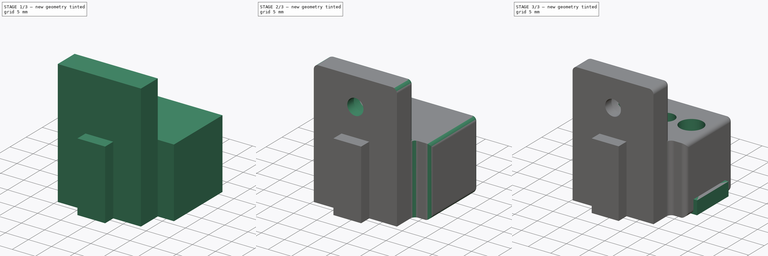
[diagram: build sequence overview — one tinted view per stage of 3, left to right]
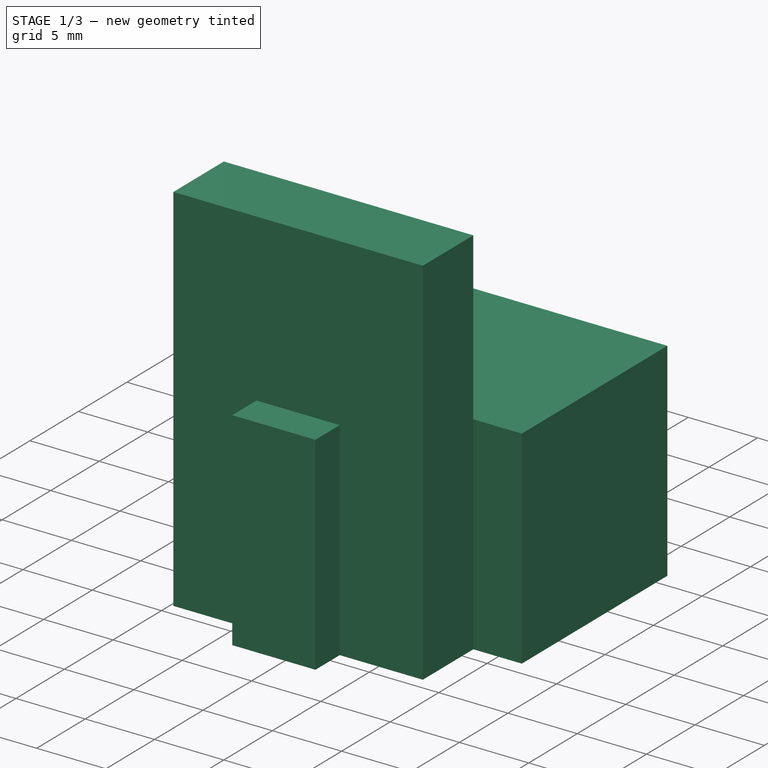
[diagram: stage 1 of 3 — iso view after this stage's code; geometry added in this stage tinted green]
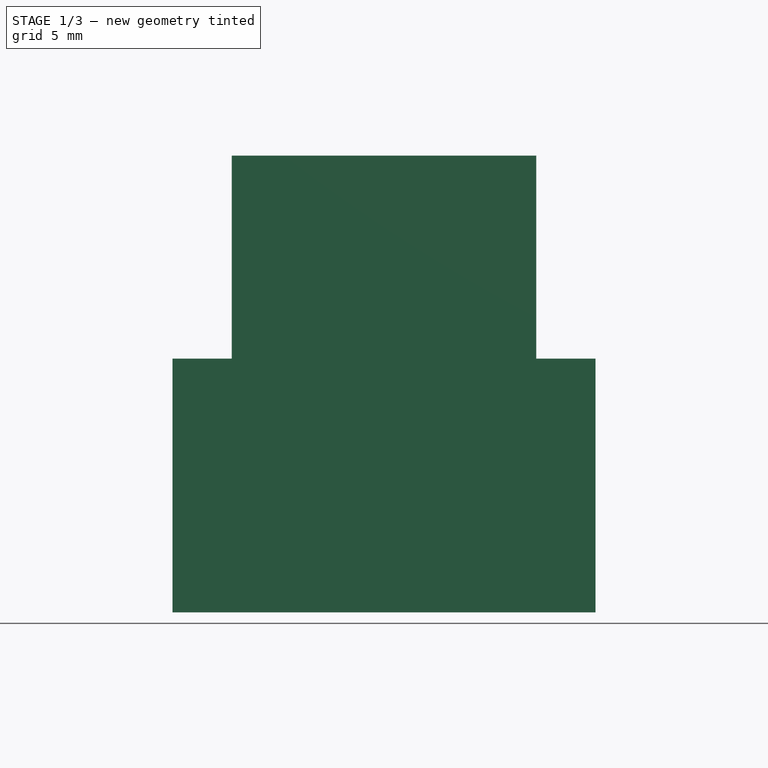
[diagram: stage 1 of 3 — front view after this stage's code; geometry added in this stage tinted green]
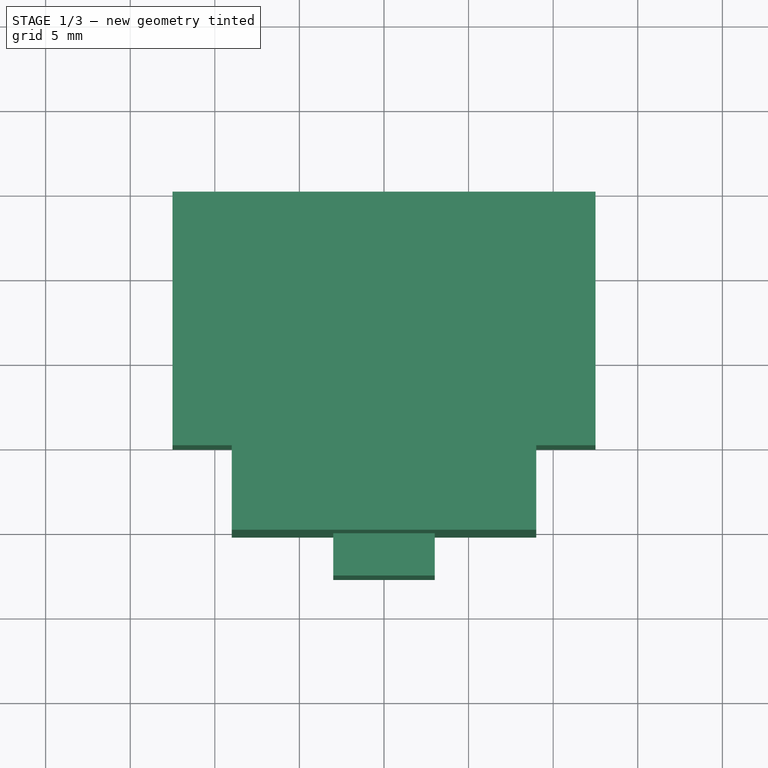
[diagram: stage 1 of 3 — top view after this stage's code; geometry added in this stage tinted green]
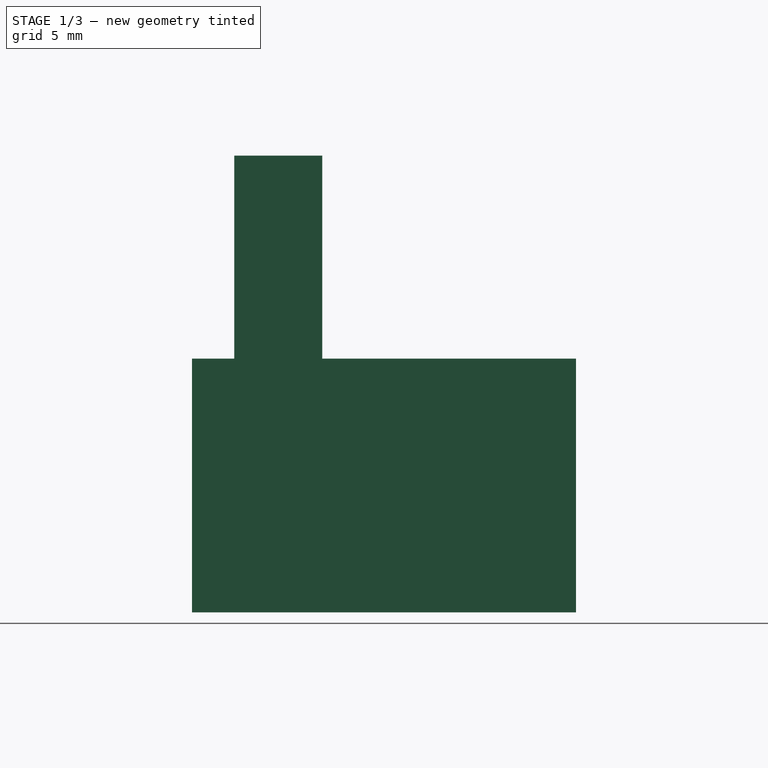
[diagram: stage 1 of 3 — right view after this stage's code; geometry added in this stage tinted green]
FCSTD DOCUMENT  (FreeCAD 0.17R13522 (Git))
Label: AllenStore
License: All rights reserved
LicenseURL: http://en.wikipedia.org/wiki/All_rights_reserved
objects: Sketcher::SketchObject×6, PartDesign::Pad×3, PartDesign::Pocket×3, PartDesign::Body×2, App::Part×2, Spreadsheet::Sheet×1, PartDesign::Fillet×1
note: 21 computed .brp shape members not serialized (recipe doc carries the construction recipe); baked Part::Feature solids carry a one-line shape summary decoded from their .brp

FEATURE [Sketcher::SketchObject] Sketch001
  MapMode = 5
  Support = -> [XY_Plane003]
  expr: Constraints[5] = Spreadsheet.BodyWidth
  expr: Constraints[31] = Spreadsheet.BodyLength
  expr: Constraints[25] = Spreadsheet.AttacherGrooveWidth
  expr: Constraints[29] = Spreadsheet.AttacherGrooveHeight
  expr: Constraints[26] = Spreadsheet.AttacherThickness
  expr: Constraints[8] = Spreadsheet.AttacherWidth
  sketch-geometry (12):
    g0: LineSegment StartX=-12.5 StartY=15 StartZ=0 EndX=12.5 EndY=15 EndZ=0
    g1: LineSegment StartX=12.5 StartY=15 StartZ=0 EndX=12.5 EndY=0 EndZ=0
    g2: LineSegment StartX=-12.5 StartY=0 StartZ=0 EndX=-12.5 EndY=15 EndZ=0
    g3: LineSegment StartX=-12.5 StartY=0 StartZ=0 EndX=-9 EndY=0 EndZ=0
    g4: LineSegment StartX=12.5 StartY=0 StartZ=0 EndX=9 EndY=0 EndZ=0
    g5: LineSegment StartX=-9 StartY=0 StartZ=0 EndX=-9 EndY=-5.2 EndZ=0
    g6: LineSegment StartX=-9 StartY=-5.2 StartZ=0 EndX=-3 EndY=-5.2 EndZ=0
    g7: LineSegment StartX=-3 StartY=-5.2 StartZ=0 EndX=-3 EndY=-7.7 EndZ=0
    g8: LineSegment StartX=-3 StartY=-7.7 StartZ=0 EndX=3 EndY=-7.7 EndZ=0
    g9: LineSegment StartX=3 StartY=-7.7 StartZ=0 EndX=3 EndY=-5.2 EndZ=0
    g10: LineSegment StartX=3 StartY=-5.2 StartZ=0 EndX=9 EndY=-5.2 EndZ=0
    g11: LineSegment StartX=9 StartY=-5.2 StartZ=0 EndX=9 EndY=0 EndZ=0
  constraints (35):
    c: Coincident(g0,g1)
    c: Coincident(g2,g0)
    c: Horizontal(g0)
    c: Vertical(g1)
    c: Vertical(g2)
    c: DistanceX(g0,g0) = 25
    c: Horizontal(g3)
    c: Equal(g3,g4)
    c: DistanceX(g3,g4) = 18
    c: Coincident(g3,g5)
    c: Vertical(g5)
    c: Coincident(g5,g6)
    c: Horizontal(g6)
    c: Coincident(g6,g7)
    c: Vertical(g7)
    c: Coincident(g7,g8)
    c: Horizontal(g8)
    c: Coincident(g8,g9)
    c: Vertical(g9)
    c: Coincident(g9,g10)
    c: Horizontal(g10)
    c: Coincident(g10,g11)
    c: Coincident(g11,g4)
    c: Vertical(g11)
    c: Equal(g10,g6)
    c: DistanceX(g8,g8) = 6
    c: DistanceY(g11,g11) = 5.2
    c: Horizontal(g4)
    c: Equal(g11,g5)
    c: DistanceY(g9,g9) = 2.5
    c: Symmetric(g2,g1,g-2)
    c: DistanceY(g4,g0) = 15
    c: PointOnObject(g4,g-1)
    c: Coincident(g2,g3)
    c: Coincident(g1,g4)
FEATURE [Spreadsheet::Sheet] Spreadsheet
  cells = B2=ScrewRadius; C2(ScrewRadius)=1.75; B3=ScrewHeadRadius; C3(ScrewHeadRadius)=3.1000000000000001; B4=ScrewHeadHeight; C4(ScrewHeadHeight)=3.2000000000000002; B5=BodyWidth; C5(BodyWidth)=25; B6=BodyLength; C6(BodyLength)=15; B7=BodyHeight; C7(BodyHeight)=15; B8=AttacherThickness; C8(AttacherThickness)==ScrewHeadHeight + 2; B9=AttacherWidth; C9(AttacherWidth)=18; B10=AttacherHeight; C10(AttacherHeight)=12; B11=AttacherGrooveWidth; C11(AttacherGrooveWidth)=6; B12=AttacherGrooveHeight; C12(AttacherGrooveHeight)=2.5; B13=AttacherHoleOffset; C13(AttacherHoleOffset)==BodyHeight + AttacherHeight / 2; B14=AllenDistance; C14(AllenDistance)=1.2
FEATURE [PartDesign::Pad] Pad001
  Length = 15
  Length2 = 100
  Profile = -> Sketch001
  Type = 0
  expr: Length = Spreadsheet.BodyHeight
FEATURE [Sketcher::SketchObject] Sketch004
  MapMode = 5
  Placement = pos=(0,0,0) rot=(1,0,0;1.5708rad)
  Support = -> [XZ_Plane003]
  expr: Constraints[2] = Spreadsheet.AttacherHoleOffset
  expr: Constraints[1] = Spreadsheet.ScrewRadius
  sketch-geometry (1):
    g0: Circle CenterX=0 CenterY=21 CenterZ=0 NormalX=0 NormalY=0 NormalZ=1 AngleXU=0 Radius=1.75
  constraints (3):
    c: PointOnObject(g0,g-2)
    c: Radius(g0) = 1.75
    c: DistanceY(g-1,g0) = 21
FEATURE [Sketcher::SketchObject] Sketch006
  AttachmentOffset = pos=(0,0,15) rot=(0,0,1;0rad)
  MapMode = 5
  Placement = pos=(0,0,15) rot=(0,0,1;0rad)
  Support = -> [XY_Plane003]
  expr: Constraints[0] = Spreadsheet.AttacherWidth
  expr: AttachmentOffset.Base.z = Spreadsheet.BodyHeight
  expr: Constraints[5] = Spreadsheet.AttacherThickness
  sketch-geometry (4):
    g0: LineSegment StartX=-9 StartY=0 StartZ=0 EndX=-9 EndY=-5.2 EndZ=0
    g1: LineSegment StartX=-9 StartY=-5.2 StartZ=0 EndX=9 EndY=-5.2 EndZ=0
    g2: LineSegment StartX=9 StartY=-5.2 StartZ=0 EndX=9 EndY=0 EndZ=0
    g3: LineSegment StartX=-9 StartY=0 StartZ=0 EndX=9 EndY=0 EndZ=0
  constraints (12):
    c: DistanceX(g0,g2) = 18
    c: Vertical(g0)
    c: Horizontal(g1)
    c: Coincident(g1,g2)
    c: Vertical(g2)
    c: DistanceY(g2,g2) = 5.2
    c: Equal(g2,g0)
    c: PointOnObject(g2,g-1)
    c: Coincident(g3,g0)
    c: Coincident(g3,g2)
    c: Symmetric(g0,g2,g-2)
    c: Coincident(g1,g0)
FEATURE [PartDesign::Pad] Pad002
  BaseFeature = -> Pad001
  Length = 12
  Length2 = 100
  Profile = -> Sketch006
  Type = 0
  expr: Length = Spreadsheet.AttacherHeight
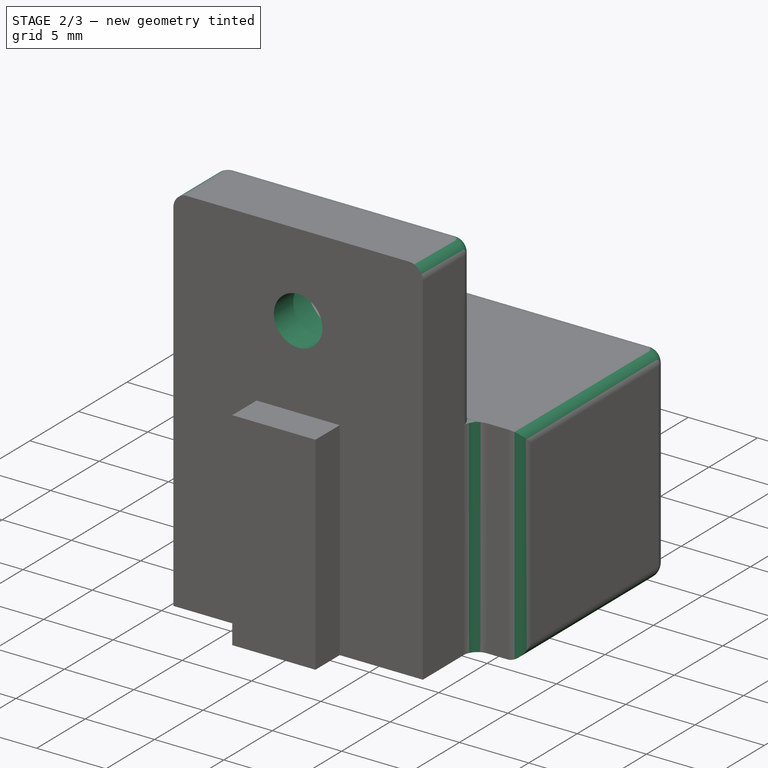
[diagram: stage 2 of 3 — iso view after this stage's code; geometry added in this stage tinted green]
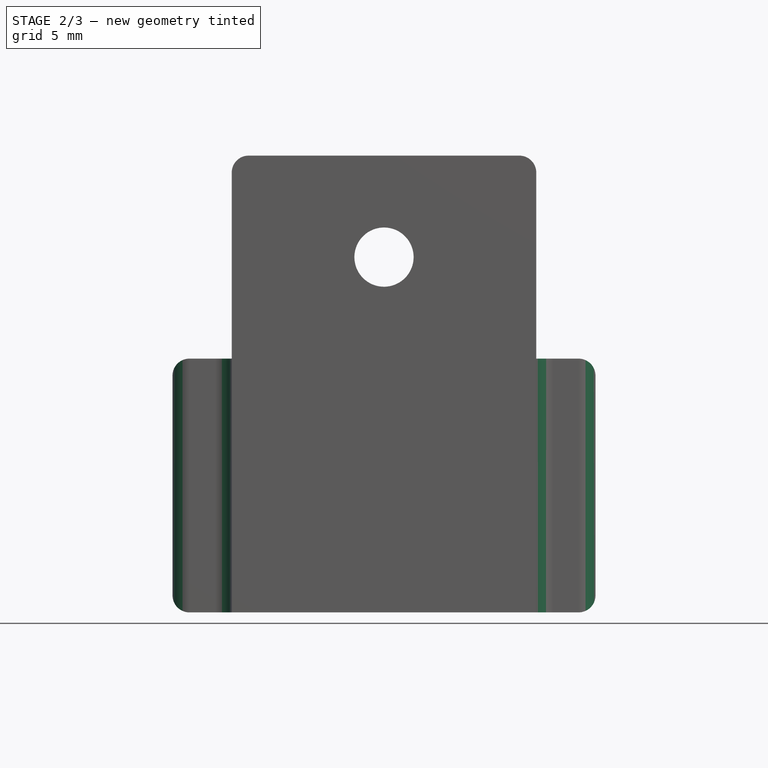
[diagram: stage 2 of 3 — front view after this stage's code; geometry added in this stage tinted green]
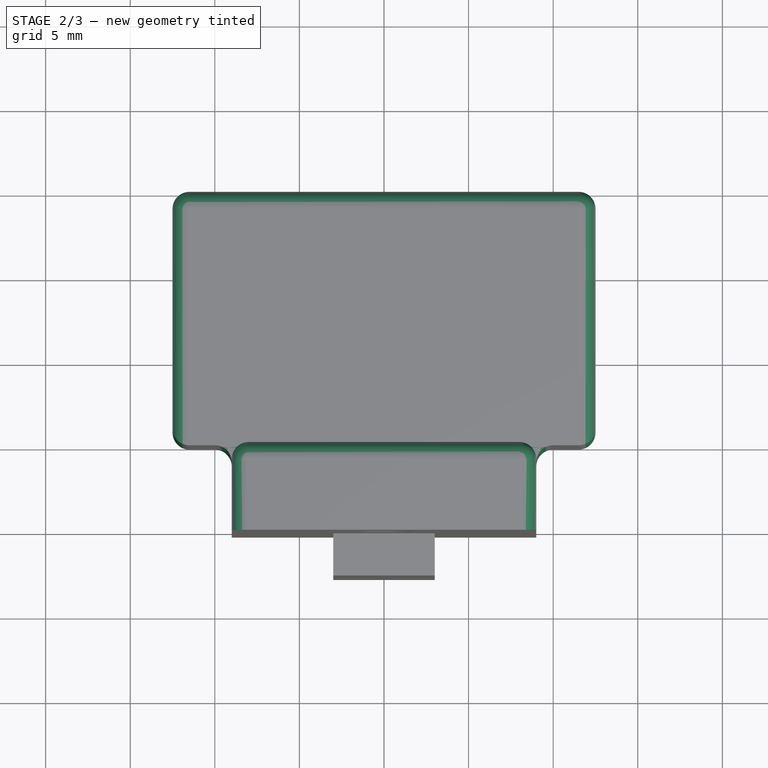
[diagram: stage 2 of 3 — top view after this stage's code; geometry added in this stage tinted green]
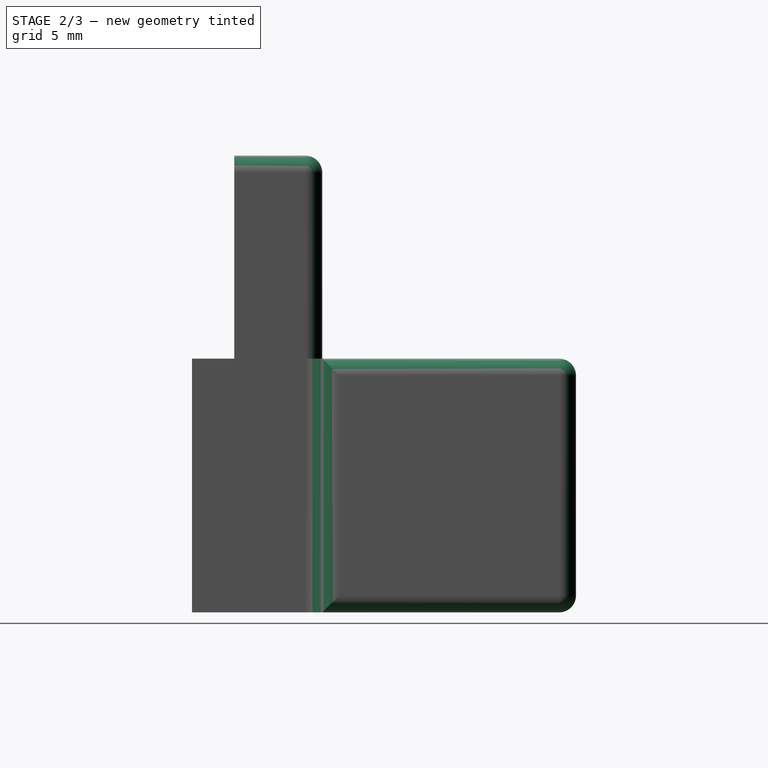
[diagram: stage 2 of 3 — right view after this stage's code; geometry added in this stage tinted green]
FEATURE [PartDesign::Pocket] Pocket
  BaseFeature = -> Pad002
  Length = 5
  Length2 = 100
  Profile = -> Sketch004
  Reversed = true
  Type = 2
FEATURE [Sketcher::SketchObject] Sketch007
  MapMode = 5
  Placement = pos=(0,0,0) rot=(1,0,0;1.5708rad)
  Support = -> [XZ_Plane003]
  expr: Constraints[2] = Spreadsheet.AttacherHoleOffset
  expr: Constraints[1] = Spreadsheet.ScrewHeadRadius
  sketch-geometry (1):
    g0: Circle CenterX=0 CenterY=21 CenterZ=0 NormalX=0 NormalY=0 NormalZ=1 AngleXU=0 Radius=3.1
  constraints (3):
    c: PointOnObject(g0,g-2)
    c: Radius(g0) = 3.1
    c: DistanceY(g-1,g0) = 21
FEATURE [PartDesign::Pocket] Pocket001
  BaseFeature = -> Pocket
  Length = 3.2
  Length2 = 100
  Profile = -> Sketch007
  Reversed = true
  Type = 0
  expr: Length = Spreadsheet.ScrewHeadHeight
FEATURE [PartDesign::Fillet] Fillet
  Base = -> Pocket001 [Edge1,Edge5,Edge23,Edge2,Edge8,Edge24,Edge40,Edge38,Edge4,Edge10,Edge7,Edge3,Edge6,Edge9,Edge39,Edge43,Edge48]
  BaseFeature = -> Pocket001
  Radius = 1
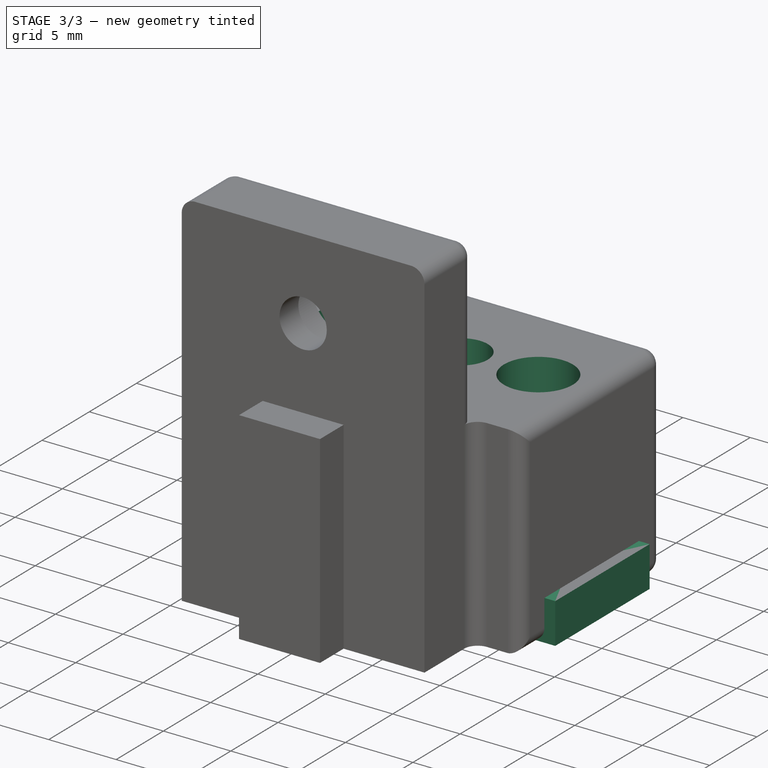
[diagram: stage 3 of 3 — iso view after this stage's code; geometry added in this stage tinted green]
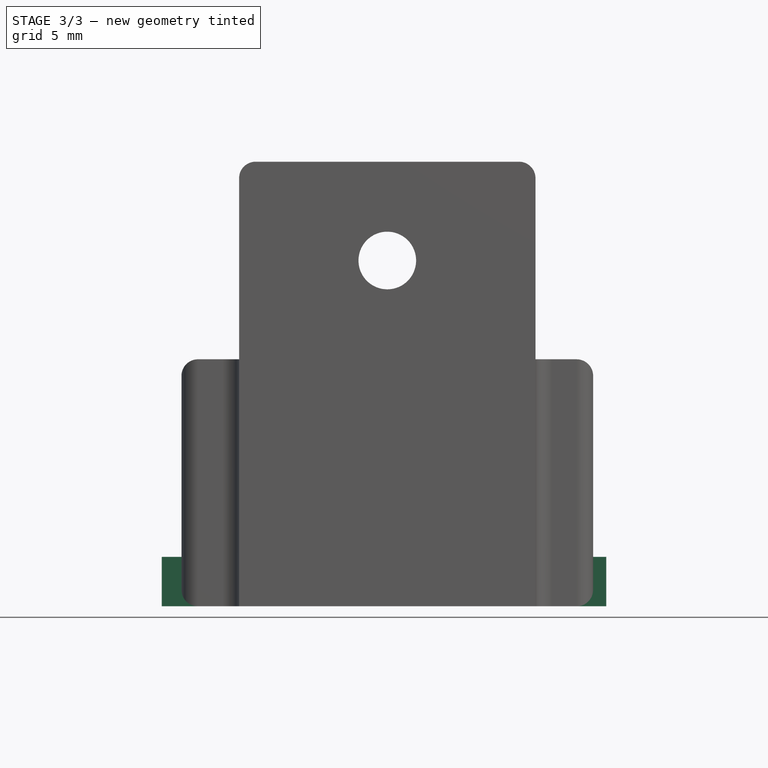
[diagram: stage 3 of 3 — front view after this stage's code; geometry added in this stage tinted green]
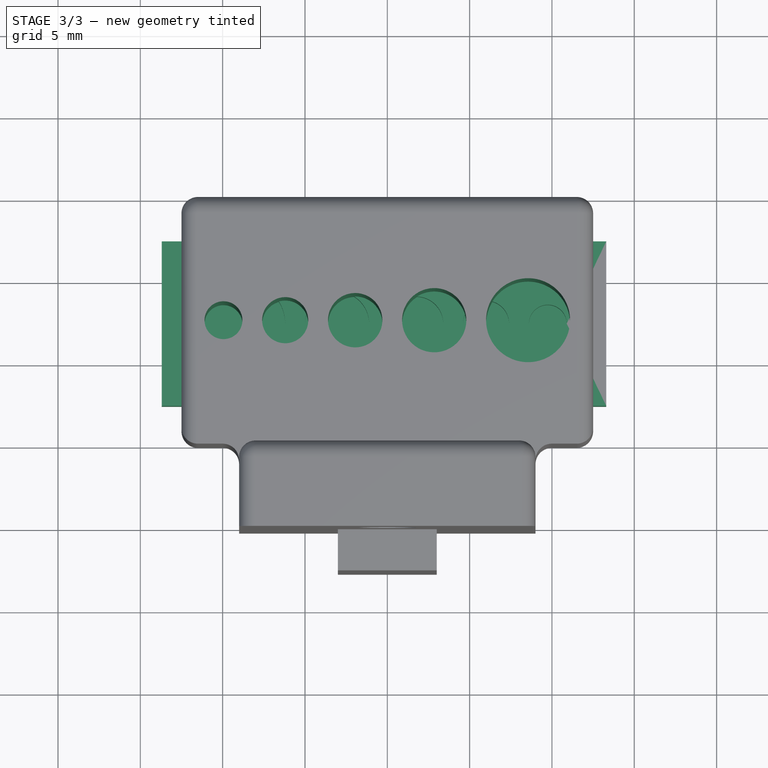
[diagram: stage 3 of 3 — top view after this stage's code; geometry added in this stage tinted green]
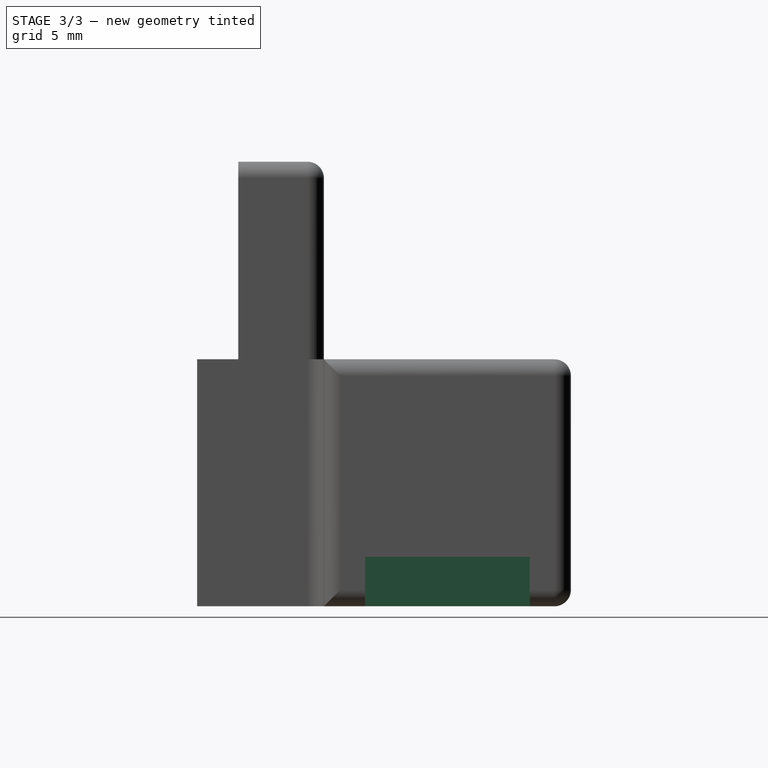
[diagram: stage 3 of 3 — right view after this stage's code; geometry added in this stage tinted green]
FEATURE [Sketcher::SketchObject] Sketch008
  MapMode = 5
  Placement = pos=(0,0,15) rot=(0,0,1;0rad)
  Support = -> [Fillet]
  expr: Constraints[39] = Spreadsheet.AllenDistance
  expr: Constraints[37] = Spreadsheet.AllenDistance
  expr: Constraints[36] = Spreadsheet.AllenDistance
  expr: Constraints[38] = Spreadsheet.AllenDistance
  expr: Constraints[3] = Spreadsheet.BodyWidth
  expr: Constraints[2] = Spreadsheet.BodyLength
  sketch-geometry (17):
    g0: LineSegment [constr] StartX=0 StartY=0 StartZ=0 EndX=0 EndY=15 EndZ=0
    g1: LineSegment [constr] StartX=-12.5 StartY=7.5 StartZ=0 EndX=12.5 EndY=7.5 EndZ=0
    g2: Circle CenterX=8.55 CenterY=7.5 CenterZ=0 NormalX=0 NormalY=0 NormalZ=1 AngleXU=0 Radius=2.55
    g3: Circle CenterX=2.85 CenterY=7.5 CenterZ=0 NormalX=0 NormalY=0 NormalZ=1 AngleXU=0 Radius=1.95
    g4: Circle CenterX=-1.95 CenterY=7.5 CenterZ=0 NormalX=0 NormalY=0 NormalZ=1 AngleXU=0 Radius=1.65
    g5: Circle CenterX=-6.2 CenterY=7.5 CenterZ=0 NormalX=0 NormalY=0 NormalZ=1 AngleXU=0 Radius=1.4
    g6: GeomPoint X=6 Y=7.5 Z=0
    g7: GeomPoint X=11.1 Y=7.5 Z=0
    g8: GeomPoint X=0.9 Y=7.5 Z=0
    g9: GeomPoint X=4.8 Y=7.5 Z=0
    g10: GeomPoint X=-3.6 Y=7.5 Z=0
    g11: GeomPoint X=-0.3 Y=7.5 Z=0
    g12: GeomPoint X=-7.6 Y=7.5 Z=0
    g13: GeomPoint X=-4.8 Y=7.5 Z=0
    g14: Circle CenterX=-9.95 CenterY=7.5 CenterZ=0 NormalX=0 NormalY=0 NormalZ=1 AngleXU=0 Radius=1.15
    g15: GeomPoint X=-11.1 Y=7.5 Z=0
    g16: GeomPoint X=-8.8 Y=7.5 Z=0
  constraints (41):
    c: Coincident(g0,g-1)
    c: Vertical(g0)
    c: DistanceY(g0,g0) = 15
    c: DistanceX(g1,g1) = 25
    c: Symmetric(g1,g1,g0)
    c: PointOnObject(g2,g1)
    c: Radius(g2) = 2.55
    c: PointOnObject(g3,g1)
    c: Radius(g3) = 1.95
    c: Symmetric(g0,g-1,g1)
    c: PointOnObject(g4,g1)
    c: Radius(g4) = 1.65
    c: Radius(g5) = 1.4
    c: PointOnObject(g5,g1)
    c: PointOnObject(g6,g2)
    c: PointOnObject(g7,g2)
    c: PointOnObject(g8,g3)
    c: PointOnObject(g9,g3)
    c: PointOnObject(g10,g4)
    c: PointOnObject(g11,g4)
    c: PointOnObject(g13,g5)
    c: PointOnObject(g12,g5)
    c: PointOnObject(g6,g1)
    c: PointOnObject(g7,g1)
    c: PointOnObject(g8,g1)
    c: PointOnObject(g9,g1)
    c: PointOnObject(g10,g1)
    c: PointOnObject(g11,g1)
    c: PointOnObject(g12,g1)
    c: PointOnObject(g13,g1)
    c: PointOnObject(g14,g1)
    c: PointOnObject(g15,g14)
    c: PointOnObject(g16,g14)
    c: PointOnObject(g16,g1)
    c: PointOnObject(g15,g1)
    c: Radius(g14) = 1.15
    c: DistanceX(g9,g6) = 1.2
    c: DistanceX(g11,g8) = 1.2
    c: DistanceX(g13,g10) = 1.2
    c: DistanceX(g16,g12) = 1.2
    c: Symmetric(g15,g7,g0)
FEATURE [Sketcher::SketchObject] Sketch009
  MapMode = 5
  expr: Constraints[51] = Spreadsheet.AllenDistance * 2
  expr: Constraints[49] = Spreadsheet.AllenDistance
  expr: Constraints[42] = Spreadsheet.AllenDistance * 2
  expr: Constraints[38] = Spreadsheet.AllenDistance
  expr: Constraints[29] = Spreadsheet.AllenDistance
  expr: Constraints[3] = Spreadsheet.BodyWidth
  expr: Constraints[32] = Spreadsheet.AllenDistance
  expr: Constraints[39] = Spreadsheet.AllenDistance
  expr: Constraints[2] = Spreadsheet.BodyLength
  sketch-geometry (21):
    g0: LineSegment [constr] StartX=0 StartY=0 StartZ=0 EndX=0 EndY=15 EndZ=0
    g1: LineSegment [constr] StartX=-12.5 StartY=7.5 StartZ=0 EndX=12.5 EndY=7.5 EndZ=0
    g2: Circle CenterX=-8.75 CenterY=7.5 CenterZ=0 NormalX=0 NormalY=0 NormalZ=1 AngleXU=0 Radius=2.55
    g3: Circle CenterX=-3.05 CenterY=7.5 CenterZ=0 NormalX=0 NormalY=0 NormalZ=1 AngleXU=0 Radius=1.95
    g4: Circle CenterX=1.75 CenterY=7.5 CenterZ=0 NormalX=0 NormalY=0 NormalZ=1 AngleXU=0 Radius=1.65
    g5: Circle CenterX=6 CenterY=7.5 CenterZ=0 NormalX=0 NormalY=0 NormalZ=1 AngleXU=0 Radius=1.4
    g6: LineSegment StartX=-13.7 StartY=12.5 StartZ=0 EndX=13.3 EndY=12.5 EndZ=0
    g7: LineSegment StartX=13.3 StartY=12.5 StartZ=0 EndX=13.3 EndY=2.5 EndZ=0
    g8: LineSegment StartX=13.3 StartY=2.5 StartZ=0 EndX=-13.7 EndY=2.5 EndZ=0
    g9: LineSegment StartX=-13.7 StartY=2.5 StartZ=0 EndX=-13.7 EndY=12.5 EndZ=0
    g10: GeomPoint X=-6.2 Y=7.5 Z=0
    g11: GeomPoint X=-5 Y=7.5 Z=0
    g12: GeomPoint X=-1.1 Y=7.5 Z=0
    g13: GeomPoint X=0.1 Y=7.5 Z=0
    g14: GeomPoint X=3.4 Y=7.5 Z=0
    g15: GeomPoint X=4.6 Y=7.5 Z=0
    g16: GeomPoint X=-11.3 Y=7.5 Z=0
    g17: GeomPoint X=7.4 Y=7.5 Z=0
    g18: Circle CenterX=9.75 CenterY=7.5 CenterZ=0 NormalX=0 NormalY=0 NormalZ=1 AngleXU=0 Radius=1.15
    g19: GeomPoint X=8.6 Y=7.5 Z=0
    g20: GeomPoint X=10.9 Y=7.5 Z=0
  constraints (53):
    c: Coincident(g0,g-1)
    c: Vertical(g0)
    c: DistanceY(g0,g0) = 15
    c: DistanceX(g1,g1) = 25
    c: Symmetric(g1,g1,g0)
    c: PointOnObject(g2,g1)
    c: Radius(g2) = 2.55
    c: PointOnObject(g3,g1)
    c: Radius(g3) = 1.95
    c: Symmetric(g0,g-1,g1)
    c: Radius(g4) = 1.65
    c: Radius(g5) = 1.4
    c: Coincident(g6,g7)
    c: Coincident(g7,g8)
    c: Coincident(g8,g9)
    c: Coincident(g9,g6)
    c: Horizontal(g6)
    c: Horizontal(g8)
    c: Vertical(g7)
    c: Vertical(g9)
    c: DistanceY(g9,g9) = 10
    c: PointOnObject(g10,g2)
    c: PointOnObject(g11,g3)
    c: PointOnObject(g12,g3)
    c: PointOnObject(g13,g4)
    c: PointOnObject(g14,g4)
    c: PointOnObject(g15,g5)
    c: PointOnObject(g10,g1)
    c: PointOnObject(g11,g1)
    c: DistanceX(g10,g11) = 1.2
    c: PointOnObject(g16,g2)
    c: PointOnObject(g16,g1)
    c: DistanceX(g1,g16) = 1.2
    c: PointOnObject(g4,g1)
    c: PointOnObject(g12,g1)
    c: PointOnObject(g13,g1)
    c: PointOnObject(g15,g1)
    c: PointOnObject(g14,g1)
    c: DistanceX(g12,g13) = 1.2
    c: DistanceX(g14,g15) = 1.2
    c: PointOnObject(g17,g5)
    c: PointOnObject(g17,g1)
    c: DistanceX(g8,g16) = 2.4
    c: PointOnObject(g5,g1)
    c: Radius(g18) = 1.15
    c: PointOnObject(g19,g18)
    c: PointOnObject(g20,g18)
    c: PointOnObject(g18,g1)
    c: PointOnObject(g19,g1)
    c: DistanceX(g17,g19) = 1.2
    c: PointOnObject(g20,g1)
    c: DistanceX(g20,g7) = 2.4
    c: Symmetric(g7,g6,g1)
FEATURE [PartDesign::Pad] Pad003
  Length = 3
  Length2 = 100
  Profile = -> Sketch009
  Type = 0
FEATURE [PartDesign::Body] Body002
  Group = -> [Sketch009,Pad003]
  Origin = -> Origin005
  Tip = -> Pad003
FEATURE [App::Part] Part002
  Group = -> [Body002]
  License = CC BY 3.0
  LicenseURL = http://creativecommons.org/licenses/by/3.0/
  Origin = -> Origin004
FEATURE [PartDesign::Pocket] Pocket002
  BaseFeature = -> Fillet
  Length = 13.8
  Length2 = 100
  Profile = -> Sketch008
  Type = 0
  expr: Length = Spreadsheet.BodyHeight - 1.2
FEATURE [PartDesign::Body] Body001
  Group = -> [Sketch001,Pad001,Sketch006,Pad002,Sketch004,Pocket,Sketch007,Pocket001,Fillet,Sketch008,Pocket002]
  Origin = -> Origin003
  Tip = -> Pocket002
FEATURE [App::Part] Part001  label="Store"
  Group = -> [Body001]
  License = CC BY 3.0
  LicenseURL = http://creativecommons.org/licenses/by/3.0/
  Origin = -> Origin002
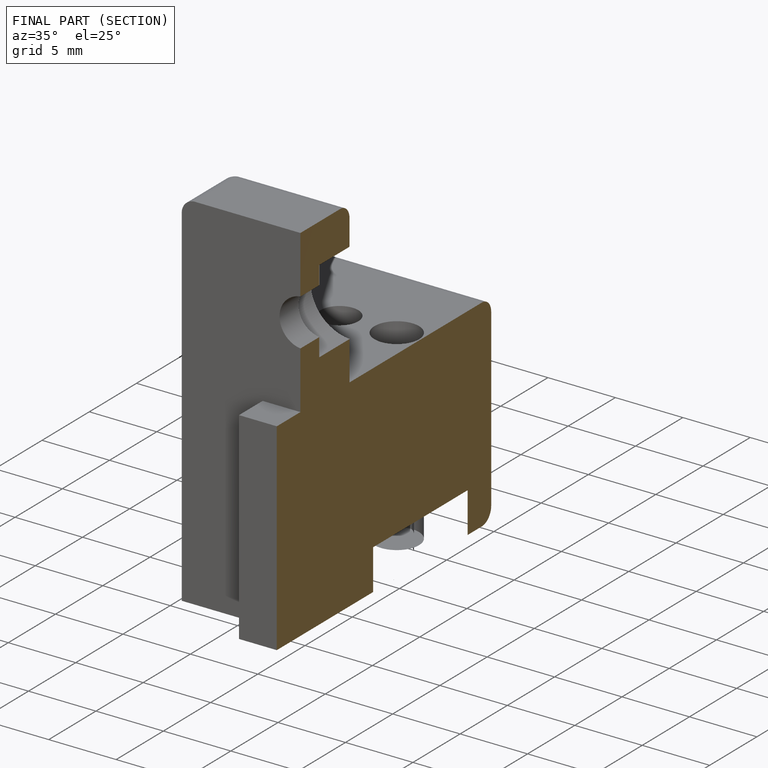
[diagram: finished part — half-section view (interior)]
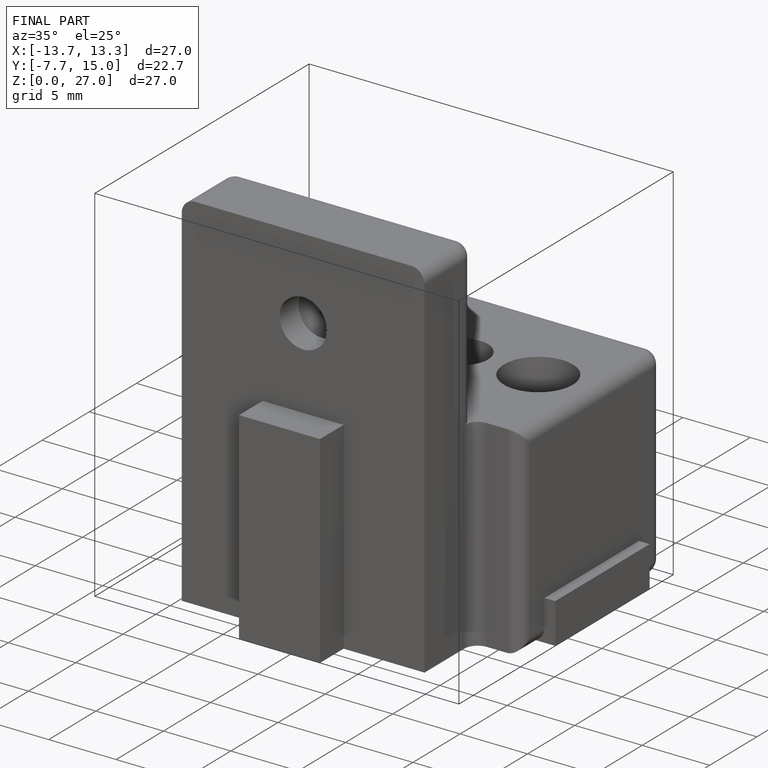
[diagram: finished part — iso view with bounding-box wireframe]
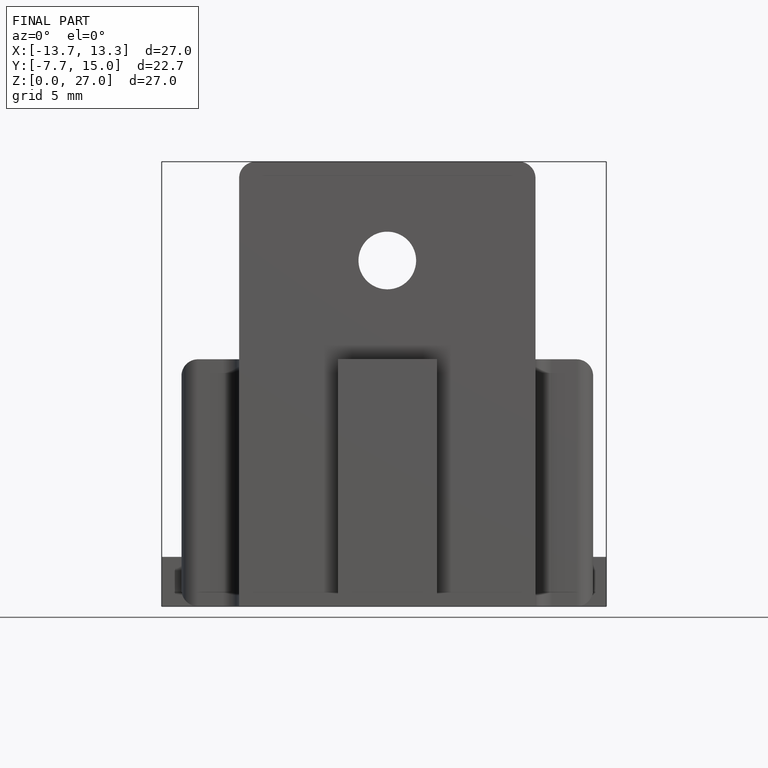
[diagram: finished part — front view with bounding-box wireframe]
